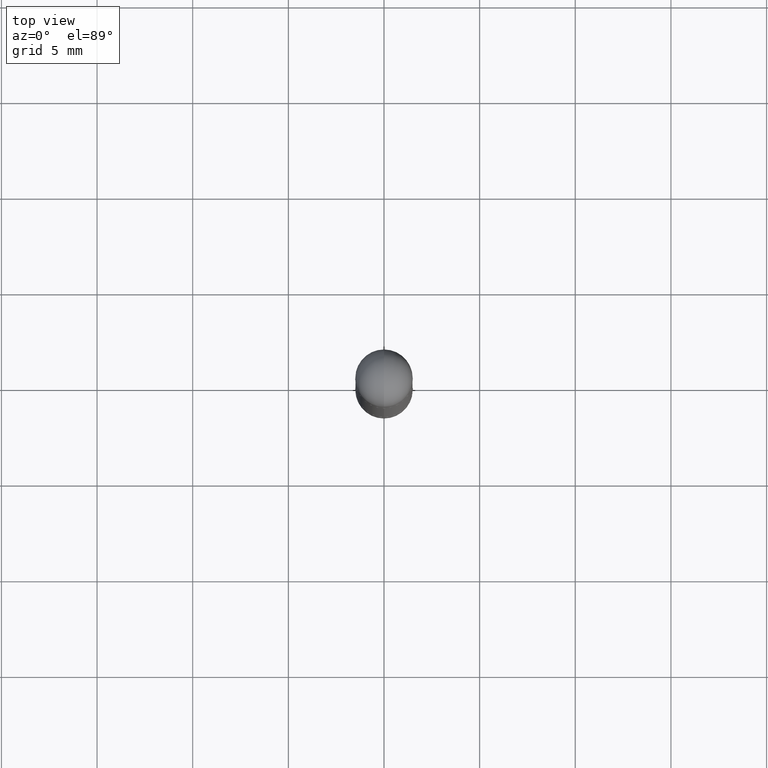
[diagram: clean part render]
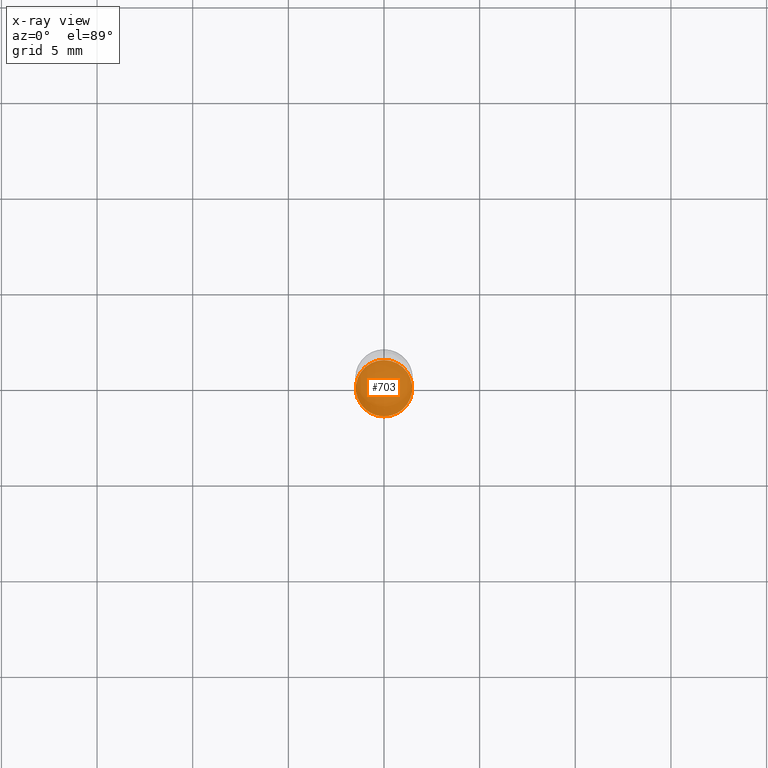
[diagram: x-ray — body ghosted, one internal face saturated and labeled with its STEP entity id]
A machine part, top view, then the same camera in x-ray: the body is ghosted and one INTERNAL B-rep face — a face not visible from any outside direction — is saturated and labeled: STEP entity #703.
In plain terms, the highlighted planar face has unit normal (-0, 0, 1).
Its self-contained STEP definition (entity closure, byte-faithful):
#47 = CARTESIAN_POINT ( 'NONE',  ( 4.160227717875699517E-16, 0.05804999999999561899, -1.259900000000000020 ) ) ;
#85 = DIRECTION ( 'NONE',  ( -6.982962677686265922E-15, -1.000000000000000000, 4.706025828879006204E-15 ) ) ;
#177 = FACE_OUTER_BOUND ( 'NONE', #198, .T. ) ;
#185 = DIRECTION ( 'NONE',  ( -6.982962677686265922E-15, -1.000000000000000000, 3.485369704569147964E-15 ) ) ;
#198 = EDGE_LOOP ( 'NONE', ( #224, #780 ) ) ;
#202 = EDGE_CURVE ( 'NONE', #330, #699, #486, .T. ) ;
#224 = ORIENTED_EDGE ( 'NONE', *, *, #202, .F. ) ;
#270 = CIRCLE ( 'NONE', #429, 0.05805000000000000437 ) ;
#275 = CARTESIAN_POINT ( 'NONE',  ( 3.086423063707921793E-29, -4.391217290786669533E-15, -1.259899999999999798 ) ) ;
#330 = VERTEX_POINT ( 'NONE', #385 ) ;
#345 = AXIS2_PLACEMENT_3D ( 'NONE', #434, #427, #185 ) ;
#385 = CARTESIAN_POINT ( 'NONE',  ( -4.053609834396569077E-16, -0.05805000000000438976, -1.259899999999999576 ) ) ;
#427 = DIRECTION ( 'NONE',  ( -2.449736537588635656E-29, 3.485369704569147964E-15, 1.000000000000000000 ) ) ;
#429 = AXIS2_PLACEMENT_3D ( 'NONE', #275, #519, #555 ) ;
#434 = CARTESIAN_POINT ( 'NONE',  ( 3.086423063707921793E-29, -4.391217290786669533E-15, -1.259899999999999798 ) ) ;
#463 = CARTESIAN_POINT ( 'NONE',  ( 3.086423063707921793E-29, -4.391217290786669533E-15, -1.259899999999999798 ) ) ;
#486 = CIRCLE ( 'NONE', #713, 0.05805000000000000437 ) ;
#519 = DIRECTION ( 'NONE',  ( -2.449736537588635656E-29, 3.485369704569148359E-15, 1.000000000000000000 ) ) ;
#555 = DIRECTION ( 'NONE',  ( -6.982962677686265922E-15, -1.000000000000000000, 4.706025828879006204E-15 ) ) ;
#633 = EDGE_CURVE ( 'NONE', #699, #330, #270, .T. ) ;
#649 = DIRECTION ( 'NONE',  ( -2.449736537588635656E-29, 3.485369704569148359E-15, 1.000000000000000000 ) ) ;
#699 = VERTEX_POINT ( 'NONE', #47 ) ;
#703 = ADVANCED_FACE ( 'NONE', ( #177 ), #743, .F. ) ;
#713 = AXIS2_PLACEMENT_3D ( 'NONE', #463, #649, #85 ) ;
#743 = PLANE ( 'NONE',  #345 ) ;
#780 = ORIENTED_EDGE ( 'NONE', *, *, #633, .F. ) ;